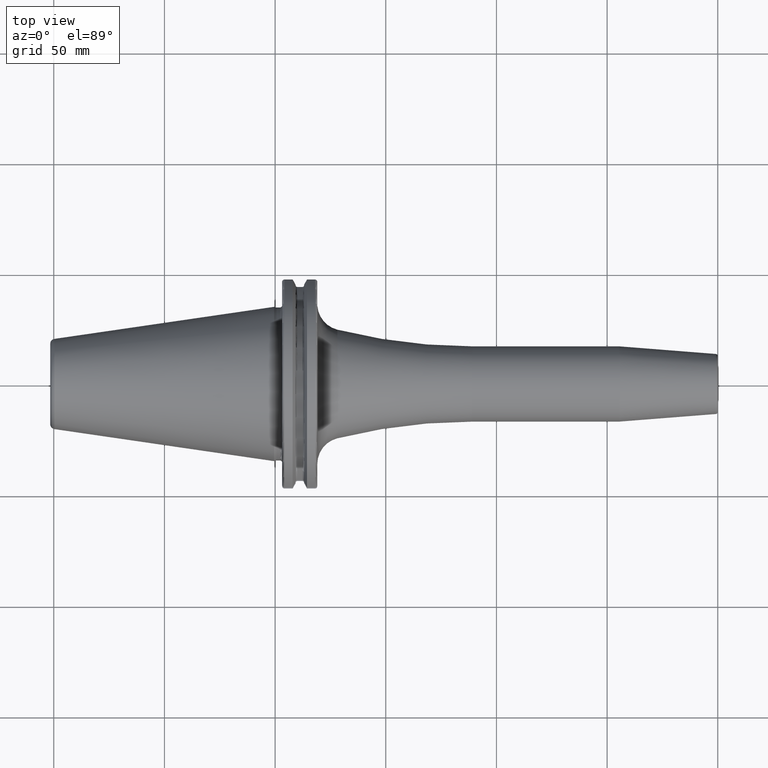
[diagram: clean part render]
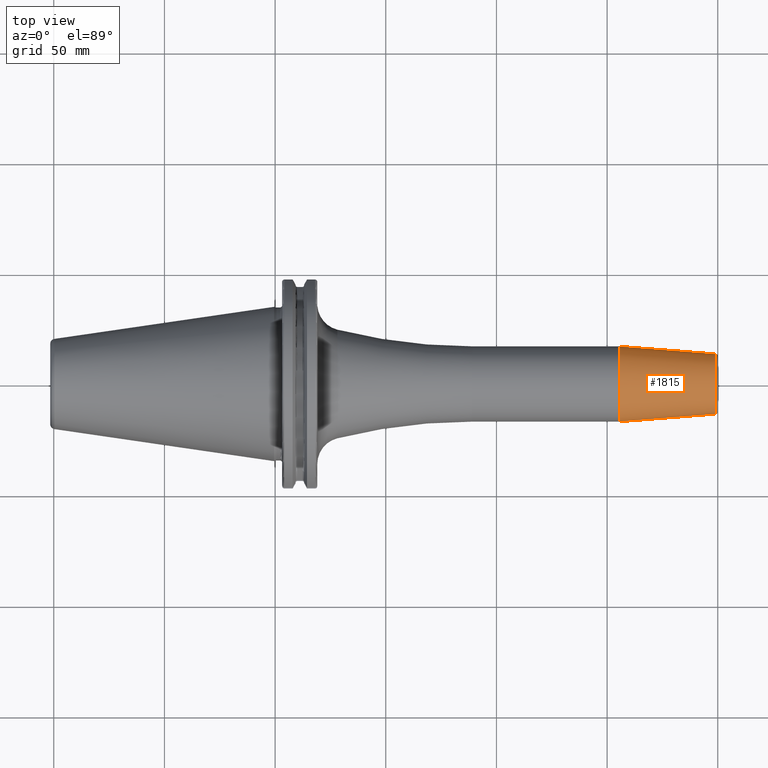
[diagram: same view with one face highlighted and labeled with its STEP entity id]
A machine part, top view. The second image highlights one B-rep face of the part: STEP entity #1815.
In plain terms, the highlighted conical surface has half-angle 4.5 deg.
Its self-contained STEP definition (entity closure, byte-faithful):
#239=CARTESIAN_POINT('',(1.555282834234E2,0.E0,0.E0));
#240=DIRECTION('',(1.E0,0.E0,0.E0));
#241=DIRECTION('',(0.E0,1.E0,0.E0));
#242=AXIS2_PLACEMENT_3D('',#239,#240,#241);
#244=CARTESIAN_POINT('',(1.990784590957E2,0.E0,0.E0));
#245=DIRECTION('',(-1.E0,0.E0,0.E0));
#246=DIRECTION('',(0.E0,-1.E0,0.E0));
#247=AXIS2_PLACEMENT_3D('',#244,#245,#246);
#264=DIRECTION('',(-9.969173337331E-1,7.845909572784E-2,6.257929142752E-14));
#265=VECTOR('',#264,4.368484145948E1);
#266=CARTESIAN_POINT('',(1.990784590957E2,1.357252684207E1,
-2.731684525099E-12));
#267=LINE('',#266,#265);
#268=DIRECTION('',(-9.969173337331E-1,-7.845909572784E-2,-6.256993807104E-14));
#269=VECTOR('',#268,4.368484145948E1);
#270=CARTESIAN_POINT('',(1.990784590957E2,-1.357252684207E1,
2.731275925204E-12));
#271=LINE('',#270,#269);
#1470=CARTESIAN_POINT('',(1.555282834234E2,1.7E1,0.E0));
#1471=CARTESIAN_POINT('',(1.555282834234E2,-1.7E1,0.E0));
#1472=VERTEX_POINT('',#1470);
#1473=VERTEX_POINT('',#1471);
#1474=CARTESIAN_POINT('',(1.990784590957E2,1.357252684207E1,0.E0));
#1475=CARTESIAN_POINT('',(1.990784590957E2,-1.357252684207E1,0.E0));
#1476=VERTEX_POINT('',#1474);
#1477=VERTEX_POINT('',#1475);
#1801=CARTESIAN_POINT('',(1.773033712596E2,0.E0,0.E0));
#1802=DIRECTION('',(-1.E0,0.E0,0.E0));
#1803=DIRECTION('',(0.E0,1.E0,0.E0));
#1804=AXIS2_PLACEMENT_3D('',#1801,#1802,#1803);
#1805=CONICAL_SURFACE('',#1804,1.528626342104E1,4.5E0);
#1807=ORIENTED_EDGE('',*,*,#1806,.F.);
#1809=ORIENTED_EDGE('',*,*,#1808,.T.);
#1810=ORIENTED_EDGE('',*,*,#1795,.F.);
#1812=ORIENTED_EDGE('',*,*,#1811,.F.);
#1813=EDGE_LOOP('',(#1807,#1809,#1810,#1812));
#1814=FACE_OUTER_BOUND('',#1813,.F.);
#1815=ADVANCED_FACE('',(#1814),#1805,.T.);
#243=CIRCLE('',#242,1.7E1);
#248=CIRCLE('',#247,1.357252684207E1);
#1795=EDGE_CURVE('',#1472,#1473,#243,.T.);
#1806=EDGE_CURVE('',#1477,#1476,#248,.T.);
#1808=EDGE_CURVE('',#1477,#1473,#271,.T.);
#1811=EDGE_CURVE('',#1476,#1472,#267,.T.);